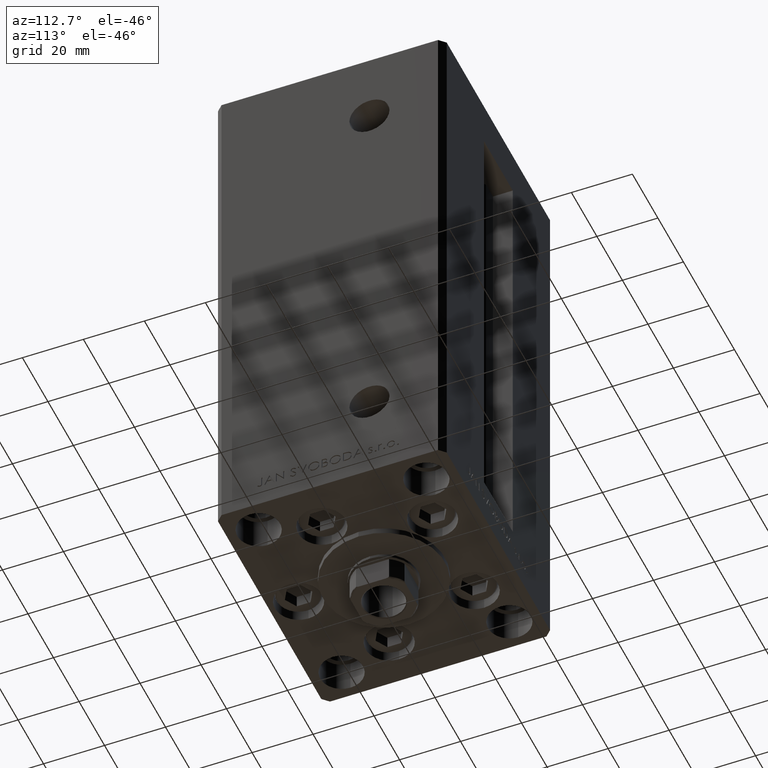
[diagram: clean part render]
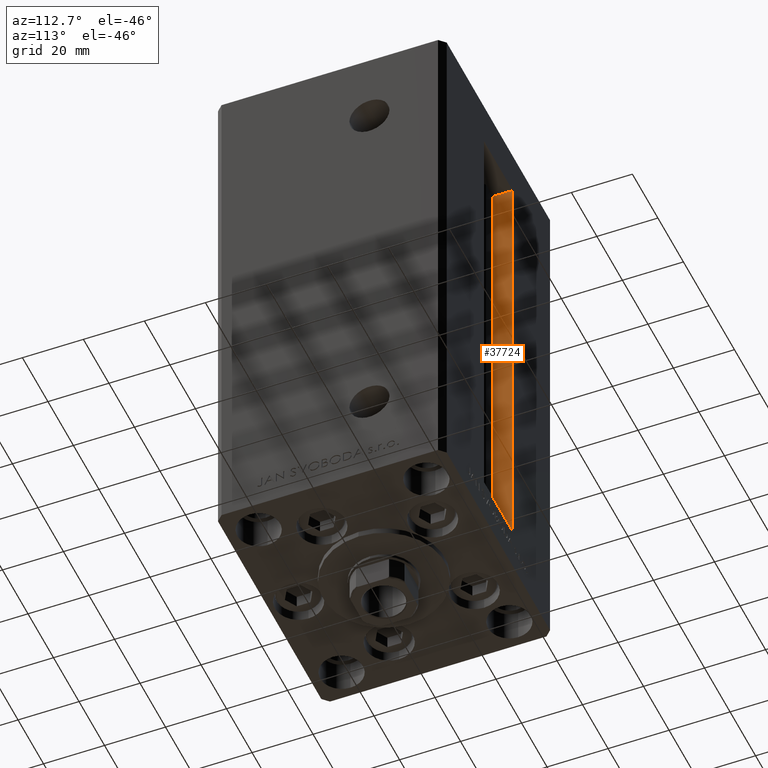
[diagram: same view with one face highlighted and labeled with its STEP entity id]
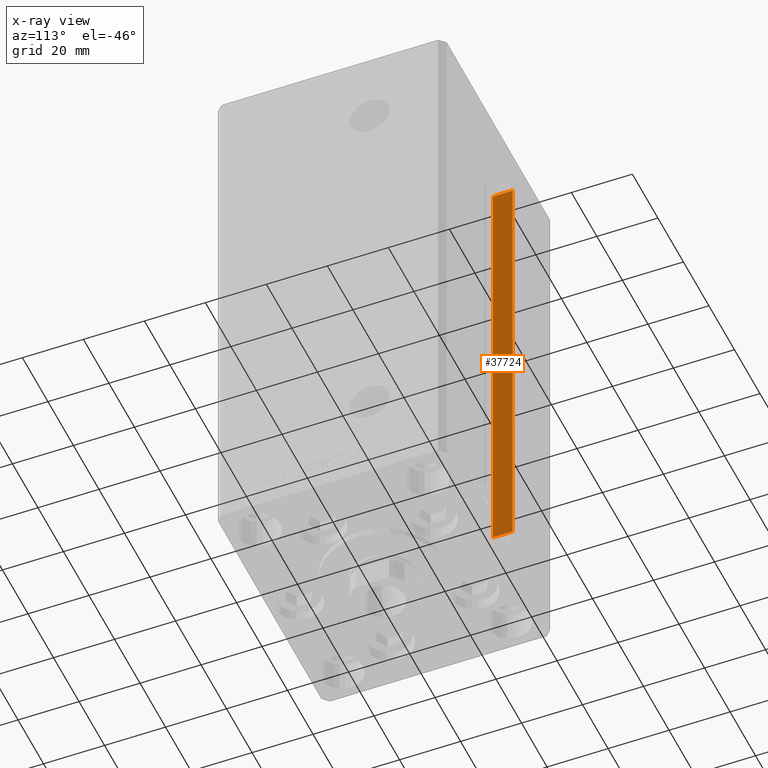
[diagram: x-ray of the same camera — body ghosted, the highlighted face saturated]
A machine part, auxiliary view. The second image highlights one B-rep face of the part: STEP entity #37724.
The next image is the same camera in x-ray: the body ghosted, the highlighted face saturated — about 0% of this face is hidden behind the body in this view.
In plain terms, the highlighted planar face has unit normal (-1, 0, 0).
Its self-contained STEP definition (entity closure, byte-faithful):
#726 = VECTOR ( 'NONE', #42541, 1000.000000000000000 ) ;
#2066 = CARTESIAN_POINT ( 'NONE',  ( -11.25000000000000000, 30.99999999999999289, 0.000000000000000000 ) ) ;
#2910 = CARTESIAN_POINT ( 'NONE',  ( -11.25000000000000000, 30.99999999999999289, 0.000000000000000000 ) ) ;
#3676 = EDGE_CURVE ( 'NONE', #39005, #7685, #40723, .T. ) ;
#6451 = EDGE_CURVE ( 'NONE', #21972, #17681, #43670, .T. ) ;
#7121 = EDGE_CURVE ( 'NONE', #17681, #7685, #22885, .T. ) ;
#7685 = VERTEX_POINT ( 'NONE', #39960 ) ;
#12910 = VECTOR ( 'NONE', #21596, 1000.000000000000000 ) ;
#14064 = ORIENTED_EDGE ( 'NONE', *, *, #3676, .T. ) ;
#14674 = DIRECTION ( 'NONE',  ( 0.000000000000000000, 1.000000000000000000, 0.000000000000000000 ) ) ;
#15747 = VECTOR ( 'NONE', #37485, 1000.000000000000000 ) ;
#16010 = PLANE ( 'NONE',  #38910 ) ;
#17681 = VERTEX_POINT ( 'NONE', #43793 ) ;
#19035 = VECTOR ( 'NONE', #14674, 1000.000000000000000 ) ;
#21596 = DIRECTION ( 'NONE',  ( -0.000000000000000000, -1.000000000000000000, -0.000000000000000000 ) ) ;
#21972 = VERTEX_POINT ( 'NONE', #2066 ) ;
#22885 = LINE ( 'NONE', #38068, #19035 ) ;
#23497 = DIRECTION ( 'NONE',  ( -1.000000000000000000, 0.000000000000000000, 0.000000000000000000 ) ) ;
#25069 = LINE ( 'NONE', #2910, #12910 ) ;
#27052 = EDGE_LOOP ( 'NONE', ( #33805, #38677, #14064, #38425 ) ) ;
#27947 = CARTESIAN_POINT ( 'NONE',  ( -11.25000000000000000, 30.99999999999999289, 0.000000000000000000 ) ) ;
#30217 = CARTESIAN_POINT ( 'NONE',  ( -11.25000000000000000, 37.50000000000000000, 0.000000000000000000 ) ) ;
#30493 = CARTESIAN_POINT ( 'NONE',  ( -11.25000000000000000, 37.50000000000000000, 0.000000000000000000 ) ) ;
#31937 = FACE_OUTER_BOUND ( 'NONE', #27052, .T. ) ;
#33805 = ORIENTED_EDGE ( 'NONE', *, *, #6451, .F. ) ;
#35060 = CARTESIAN_POINT ( 'NONE',  ( -11.25000000000000000, 30.99999999999999289, 0.000000000000000000 ) ) ;
#37485 = DIRECTION ( 'NONE',  ( -0.000000000000000000, -0.000000000000000000, 1.000000000000000000 ) ) ;
#37724 = ADVANCED_FACE ( 'NONE', ( #31937 ), #16010, .F. ) ;
#38068 = CARTESIAN_POINT ( 'NONE',  ( -11.25000000000000000, 0.000000000000000000, 148.5000000000000000 ) ) ;
#38425 = ORIENTED_EDGE ( 'NONE', *, *, #7121, .F. ) ;
#38677 = ORIENTED_EDGE ( 'NONE', *, *, #49173, .F. ) ;
#38910 = AXIS2_PLACEMENT_3D ( 'NONE', #27947, #23497, #39411 ) ;
#39005 = VERTEX_POINT ( 'NONE', #30217 ) ;
#39411 = DIRECTION ( 'NONE',  ( 0.000000000000000000, 0.000000000000000000, 1.000000000000000000 ) ) ;
#39960 = CARTESIAN_POINT ( 'NONE',  ( -11.25000000000000000, 37.50000000000000000, 148.5000000000000000 ) ) ;
#40723 = LINE ( 'NONE', #30493, #15747 ) ;
#42541 = DIRECTION ( 'NONE',  ( -0.000000000000000000, -0.000000000000000000, 1.000000000000000000 ) ) ;
#43670 = LINE ( 'NONE', #35060, #726 ) ;
#43793 = CARTESIAN_POINT ( 'NONE',  ( -11.25000000000000000, 30.99999999999999289, 148.5000000000000000 ) ) ;
#49173 = EDGE_CURVE ( 'NONE', #39005, #21972, #25069, .T. ) ;